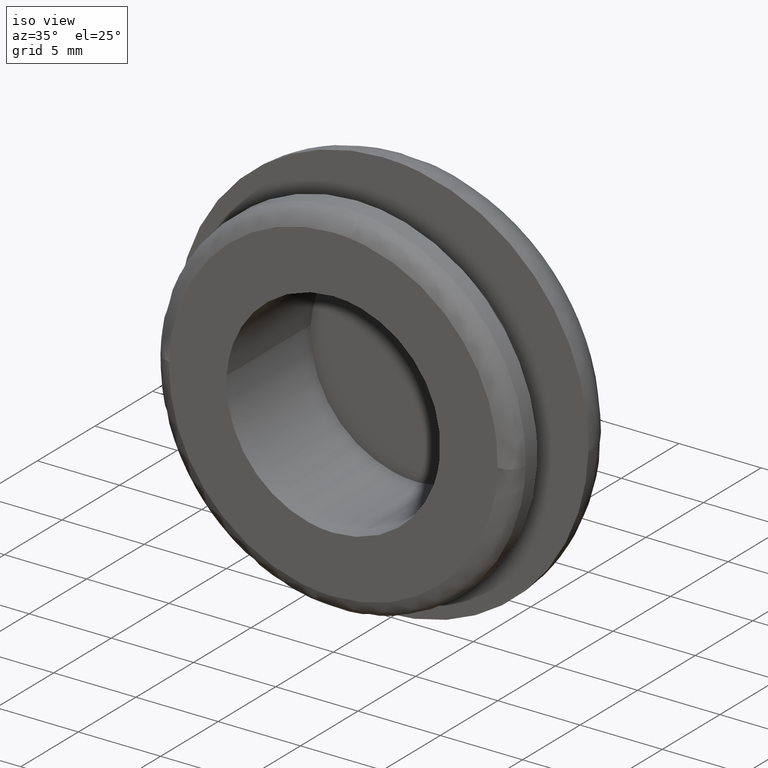
[diagram: clean part render]
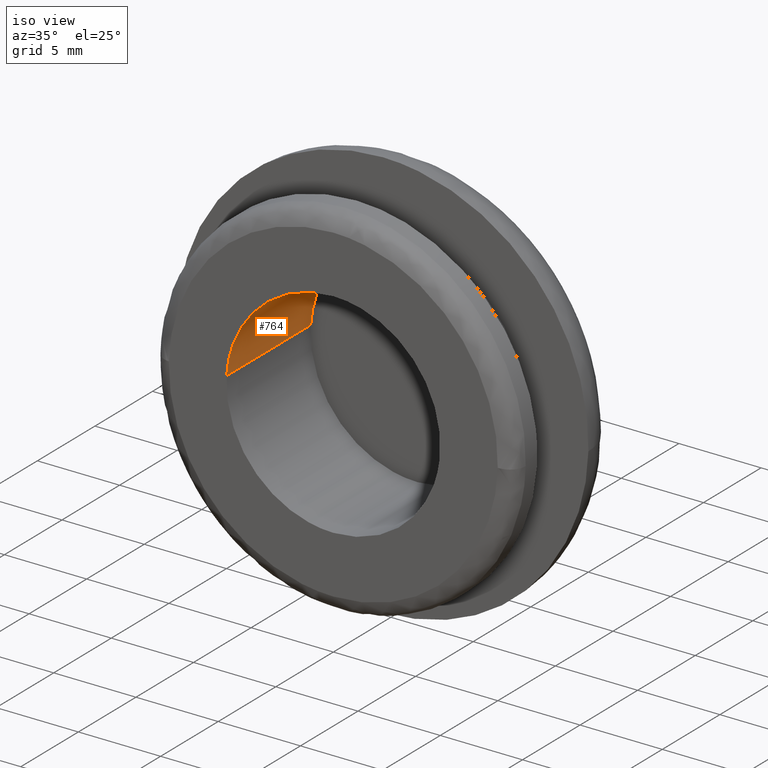
[diagram: same view with one face highlighted and labeled with its STEP entity id]
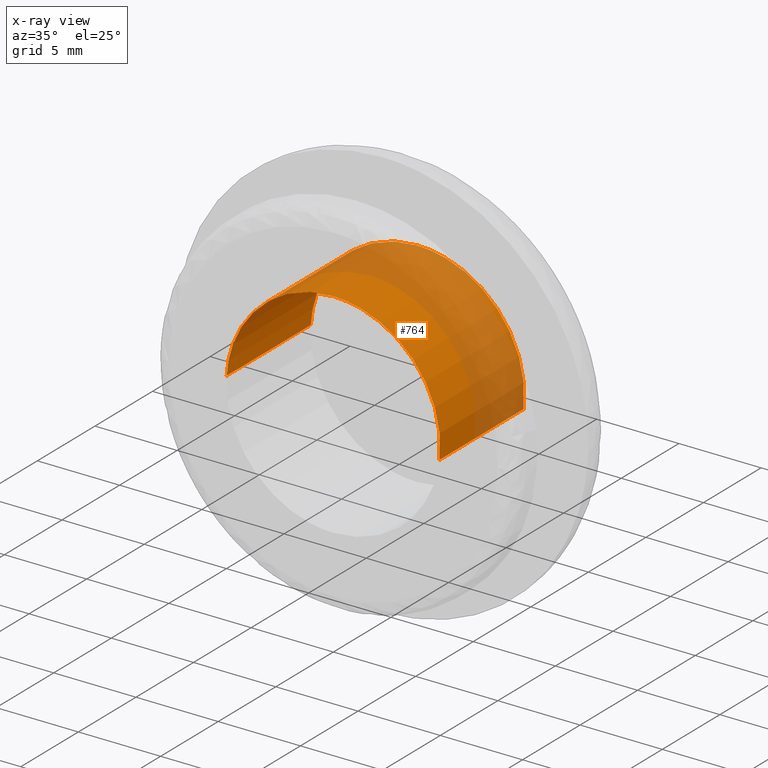
[diagram: x-ray of the same camera — body ghosted, the highlighted face saturated]
A machine part, iso view. The second image highlights one B-rep face of the part: STEP entity #764.
The next image is the same camera in x-ray: the body ghosted, the highlighted face saturated — about 49% of this face is hidden behind the body in this view.
In plain terms, the highlighted face is a freeform B-spline surface patch.
Its self-contained STEP definition (entity closure, byte-faithful):
#662=CARTESIAN_POINT('',(6.454559935344778,7.482500000000002,-0.767220289200459));
#663=CARTESIAN_POINT('',(6.476517507640708,7.482500000000001,-0.582493556917396));
#664=CARTESIAN_POINT('',(6.487874193472537,7.482500000000001,-0.396813384879490));
#665=CARTESIAN_POINT('',(6.884689578352028,7.482500000000001,6.091060808593049));
#666=CARTESIAN_POINT('',(0.396815384879491,7.482500000000001,6.487876193472539));
#667=CARTESIAN_POINT('',(-6.091058808593046,7.482500000000001,6.884691578352030));
#668=CARTESIAN_POINT('',(-6.487874193472537,7.482500000000001,0.396817384879493));
#669=CARTESIAN_POINT('',(6.454559935344778,-0.187062500000001,-0.767220289200459));
#670=CARTESIAN_POINT('',(6.476517507640708,-0.187062500000001,-0.582493556917396));
#671=CARTESIAN_POINT('',(6.487874193472537,-0.187062500000001,-0.396813384879490));
#672=CARTESIAN_POINT('',(6.884689578352028,-0.187062500000001,6.091060808593049));
#673=CARTESIAN_POINT('',(0.396815384879491,-0.187062500000001,6.487876193472539));
#674=CARTESIAN_POINT('',(-6.091058808593046,-0.187062500000001,6.884691578352030));
#675=CARTESIAN_POINT('',(-6.487874193472537,-0.187062500000001,0.396817384879493));
#683=(BOUNDED_SURFACE()B_SPLINE_SURFACE(2,1,((#662,#669),(#663,#670),(#664,#671),(#665,#672),(#666,#673),(#667,#674),(#668,#675)),.UNSPECIFIED.,.F.,.F.,.U.)B_SPLINE_SURFACE_WITH_KNOTS((3,2,2,3),(2,2),(0.0,0.430781972319680,11.200331280311650,21.969880588303621),(0.0,7.669562500000002),.UNSPECIFIED.)GEOMETRIC_REPRESENTATION_ITEM()RATIONAL_B_SPLINE_SURFACE(((0.977505800795127,0.977505800795127),(0.988284271247462,0.988284271247462),(1.0,1.0),(0.707106781186548,0.707106781186548),(1.0,1.0),(0.707106781186548,0.707106781186548),(1.0,1.0)))REPRESENTATION_ITEM('')SURFACE());
#684=CARTESIAN_POINT('',(6.454560639489660,7.299999999999969,-0.767214365257690));
#685=VERTEX_POINT('',#684);
#686=CARTESIAN_POINT('',(0.0,7.300000000000000,6.500000000000002));
#687=VERTEX_POINT('',#686);
#688=CARTESIAN_POINT('',(6.454560639489660,7.299999999999969,-0.767214365257690));
#689=CARTESIAN_POINT('',(6.499997999999999,7.299999999999999,-0.384951666004614));
#690=CARTESIAN_POINT('',(6.499998000000000,7.300000000000000,0.000002000000002));
#691=CARTESIAN_POINT('',(6.499998000000001,7.300000000000000,6.500000000000003));
#692=CARTESIAN_POINT('',(0.0,7.300000000000000,6.500000000000002));
#700=(BOUNDED_CURVE()B_SPLINE_CURVE(2,(#688,#689,#690,#691,#692),.UNSPECIFIED.,.F.,.U.)B_SPLINE_CURVE_WITH_KNOTS((3,2,3),(0.229562628625465,0.250000000000000,0.500000000000000),.UNSPECIFIED.)CURVE()GEOMETRIC_REPRESENTATION_ITEM()RATIONAL_B_SPLINE_CURVE((0.956027058209707,0.976056130056106,1.0,0.707106781186548,1.0))REPRESENTATION_ITEM(''));
#701=EDGE_CURVE('',#685,#687,#700,.T.);
#702=ORIENTED_EDGE('',*,*,#701,.F.);
#703=CARTESIAN_POINT('',(6.454560631012747,-3.556444E-016,-0.767214436574179));
#704=VERTEX_POINT('',#703);
#705=CARTESIAN_POINT('',(6.454560639489660,7.299999999999969,-0.767214365257690));
#706=CARTESIAN_POINT('',(6.454560631012747,-3.556444E-016,-0.767214436574179));
#707=QUASI_UNIFORM_CURVE('',1,(#705,#706),.UNSPECIFIED.,.F.,.U.);
#708=EDGE_CURVE('',#685,#704,#707,.T.);
#709=ORIENTED_EDGE('',*,*,#708,.T.);
#710=CARTESIAN_POINT('',(0.0,-1.193992E-015,6.500000000000002));
#711=VERTEX_POINT('',#710);
#712=CARTESIAN_POINT('',(6.454560631012747,-3.556444E-016,-0.767214436574179));
#713=CARTESIAN_POINT('',(6.499998000000000,-1.193992E-015,-0.384951702039824));
#714=CARTESIAN_POINT('',(6.499998000000000,-1.193992E-015,0.000002000000002));
#715=CARTESIAN_POINT('',(6.499998000000001,-1.193992E-015,6.500000000000003));
#716=CARTESIAN_POINT('',(0.0,-1.193992E-015,6.500000000000002));
#724=(BOUNDED_CURVE()B_SPLINE_CURVE(2,(#712,#713,#714,#715,#716),.UNSPECIFIED.,.F.,.U.)B_SPLINE_CURVE_WITH_KNOTS((3,2,3),(0.229562626758146,0.250000000000000,0.500000000000000),.UNSPECIFIED.)CURVE()GEOMETRIC_REPRESENTATION_ITEM()RATIONAL_B_SPLINE_CURVE((0.956027054549681,0.976056127868406,1.0,0.707106781186548,1.0))REPRESENTATION_ITEM(''));
#725=EDGE_CURVE('',#704,#711,#724,.T.);
#726=ORIENTED_EDGE('',*,*,#725,.T.);
#727=CARTESIAN_POINT('',(-6.487874325377931,-1.207618E-015,0.396815228233624));
#728=VERTEX_POINT('',#727);
#729=CARTESIAN_POINT('',(0.0,-1.193992E-015,6.500000000000002));
#730=CARTESIAN_POINT('',(-6.114589589834370,-1.193992E-015,6.500000000000004));
#731=CARTESIAN_POINT('',(-6.487874325377931,-1.207618E-015,0.396815228233624));
#739=(BOUNDED_CURVE()B_SPLINE_CURVE(2,(#729,#730,#731),.UNSPECIFIED.,.F.,.U.)B_SPLINE_CURVE_WITH_KNOTS((3,3),(0.500000000000000,0.739333019598558),.UNSPECIFIED.)CURVE()GEOMETRIC_REPRESENTATION_ITEM()RATIONAL_B_SPLINE_CURVE((1.0,0.719603926085741,0.976072164599322))REPRESENTATION_ITEM(''));
#740=EDGE_CURVE('',#711,#728,#739,.T.);
#741=ORIENTED_EDGE('',*,*,#740,.T.);
#742=CARTESIAN_POINT('',(-6.487874326988605,7.300000000000005,0.396815201899037));
#743=VERTEX_POINT('',#742);
#744=CARTESIAN_POINT('',(-6.487874326988605,7.300000000000005,0.396815201899037));
#745=CARTESIAN_POINT('',(-6.487874325377931,-1.207618E-015,0.396815228233624));
#746=QUASI_UNIFORM_CURVE('',1,(#744,#745),.UNSPECIFIED.,.F.,.U.);
#747=EDGE_CURVE('',#743,#728,#746,.T.);
#748=ORIENTED_EDGE('',*,*,#747,.F.);
#749=CARTESIAN_POINT('',(0.0,7.300000000000000,6.500000000000002));
#750=CARTESIAN_POINT('',(-6.114589614700156,7.300000000000001,6.500000000000003));
#751=CARTESIAN_POINT('',(-6.487874326988605,7.300000000000005,0.396815201899037));
#759=(BOUNDED_CURVE()B_SPLINE_CURVE(2,(#749,#750,#751),.UNSPECIFIED.,.F.,.U.)B_SPLINE_CURVE_WITH_KNOTS((3,3),(0.500000000000000,0.739333020298934),.UNSPECIFIED.)CURVE()GEOMETRIC_REPRESENTATION_ITEM()RATIONAL_B_SPLINE_CURVE((1.0,0.719603925265200,0.976072166100362))REPRESENTATION_ITEM(''));
#760=EDGE_CURVE('',#687,#743,#759,.T.);
#761=ORIENTED_EDGE('',*,*,#760,.F.);
#762=EDGE_LOOP('',(#702,#709,#726,#741,#748,#761));
#763=FACE_OUTER_BOUND('',#762,.T.);
#764=ADVANCED_FACE('',(#763),#683,.F.);